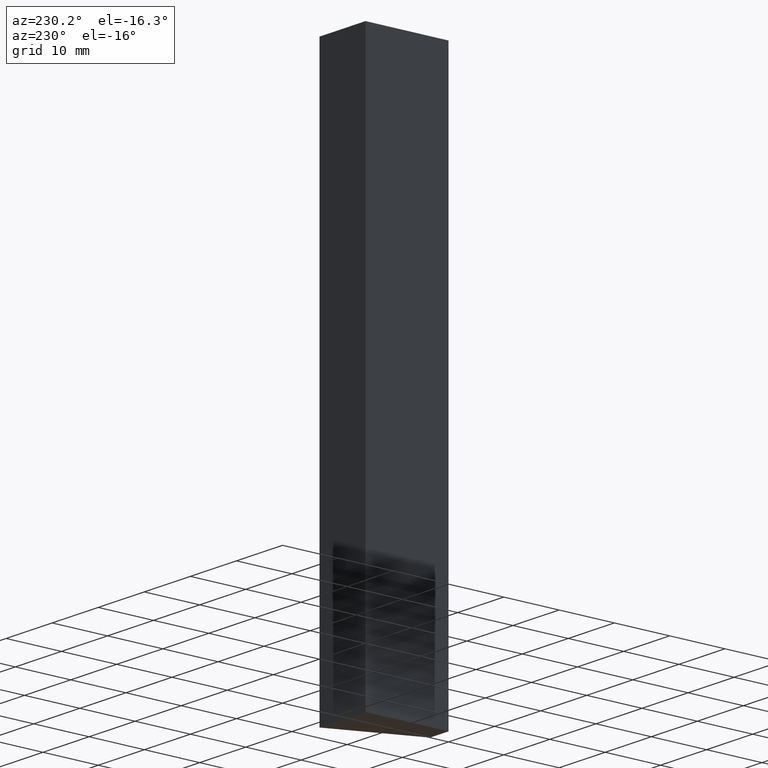
[diagram: clean part render]
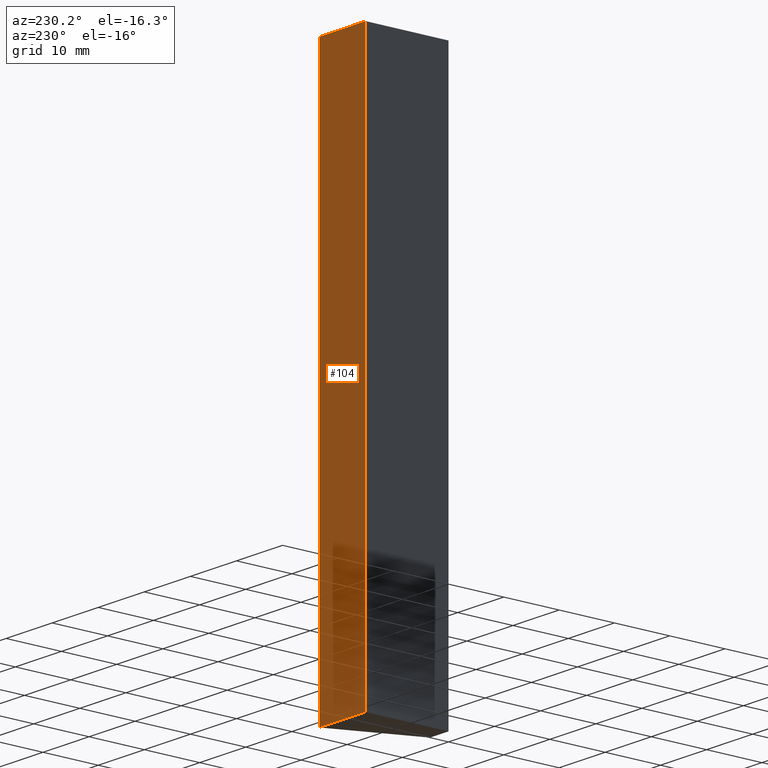
[diagram: same view with one face highlighted and labeled with its STEP entity id]
A machine part, auxiliary view. The second image highlights one B-rep face of the part: STEP entity #104.
In plain terms, the highlighted planar face has unit normal (-0, 1, 0).
Its self-contained STEP definition (entity closure, byte-faithful):
#18=FACE_OUTER_BOUND('',#24,.T.);
#24=EDGE_LOOP('',(#80,#81,#82,#83));
#31=LINE('',#169,#43);
#33=LINE('',#174,#45);
#35=LINE('',#178,#47);
#36=LINE('',#179,#48);
#43=VECTOR('',#141,10.);
#45=VECTOR('',#145,10.);
#47=VECTOR('',#149,10.);
#48=VECTOR('',#150,10.);
#53=VERTEX_POINT('',#163);
#55=VERTEX_POINT('',#167);
#57=VERTEX_POINT('',#172);
#58=VERTEX_POINT('',#177);
#63=EDGE_CURVE('',#53,#55,#31,.T.);
#65=EDGE_CURVE('',#57,#55,#33,.T.);
#67=EDGE_CURVE('',#57,#58,#35,.T.);
#68=EDGE_CURVE('',#58,#53,#36,.T.);
#80=ORIENTED_EDGE('',*,*,#67,.T.);
#81=ORIENTED_EDGE('',*,*,#68,.T.);
#82=ORIENTED_EDGE('',*,*,#63,.T.);
#83=ORIENTED_EDGE('',*,*,#65,.F.);
#98=PLANE('',#130);
#104=ADVANCED_FACE('',(#18),#98,.T.);
#130=AXIS2_PLACEMENT_3D('',#176,#147,#148);
#141=DIRECTION('',(-1.,-2.22044604925031E-16,0.));
#145=DIRECTION('',(0.,0.,-1.));
#147=DIRECTION('center_axis',(-2.22044604925031E-16,1.,0.));
#148=DIRECTION('ref_axis',(0.,0.,1.));
#149=DIRECTION('',(1.,2.22044604925031E-16,0.));
#150=DIRECTION('',(0.,0.,-1.));
#163=CARTESIAN_POINT('',(10.,15.,-50.));
#167=CARTESIAN_POINT('',(-8.32667268468867E-16,15.,-50.));
#169=CARTESIAN_POINT('',(-8.32667268468867E-16,15.,-50.));
#172=CARTESIAN_POINT('',(-8.32667268468867E-16,15.,50.));
#174=CARTESIAN_POINT('',(-8.32667268468867E-16,15.,0.));
#176=CARTESIAN_POINT('Origin',(-8.32667268468867E-16,15.,0.));
#177=CARTESIAN_POINT('',(10.,15.,50.));
#178=CARTESIAN_POINT('',(-8.32667268468867E-16,15.,50.));
#179=CARTESIAN_POINT('',(10.,15.,0.));